MODEL slx_4020c0423ea3
KIND model
CONFIG AbsTol = auto
CONFIG EnableMultiTasking = off
CONFIG FixedStep = auto
CONFIG MaxStep = auto
CONFIG MinStep = auto
CONFIG RelTol = 1e-3
CONFIG SampleTimeConstraint = Unconstrained
CONFIG Solver = ode45
CONFIG SolverName = ode45
CONFIG StartTime = 0.0
CONFIG StopTime = 10
BLOCK [Clock] Clock
BLOCK [Mux] Mux3
  DisplayOption = bar
  Ports = [4, 1]
BLOCK [Display] Simulation Time (s)
  Decimation = 1
  Ports = [1]
BLOCK [Scope] X position (m)
  NumInputPorts = 1
  Ports = [1]
  ScopeSpecificationString = C++SS(StrPVP('Open','off'),StrPVP('TimeRange','auto'),StrPVP('TickLabels','OneTimeTick'),StrPVP('ShowLegends','off'),StrPVP('LimitDataPoints','off'),StrPVP('MaxDataPoints','5000'),StrPVP('SaveToWorkspace','off'),StrPVP('SaveName','ScopeData'),StrPVP('YMin','-2.88468'),StrPVP('YMax','22.88469'),StrPVP('BlockParamSampleInput','off'),StrPVP('BlockParamSampleTime','-1'),StrPVP('ZoomMode','on'),StrPVP(...<+581ch>
BLOCK [Scope] Y position (m)
  NumInputPorts = 1
  Ports = [1]
  ScopeSpecificationString = C++SS(StrPVP('Open','off'),StrPVP('TimeRange','auto'),StrPVP('TickLabels','OneTimeTick'),StrPVP('ShowLegends','off'),StrPVP('LimitDataPoints','off'),StrPVP('MaxDataPoints','5000'),StrPVP('SaveToWorkspace','off'),StrPVP('SaveName','ScopeData2'),StrPVP('YMin','-10.3847'),StrPVP('YMax','15.38467'),StrPVP('BlockParamSampleInput','off'),StrPVP('BlockParamSampleTime','-1'),StrPVP('ZoomMode','on'),StrPVP...<+582ch>
BLOCK [Constant] const forward speed (m//s)
  Value = 1*ones(N_veh,1)
BLOCK [Scope] heading angle (rad)
  NumInputPorts = 1
  Ports = [1]
  ScopeSpecificationString = C++SS(StrPVP('Open','off'),StrPVP('TimeRange','auto'),StrPVP('TickLabels','OneTimeTick'),StrPVP('ShowLegends','off'),StrPVP('LimitDataPoints','off'),StrPVP('MaxDataPoints','5000'),StrPVP('SaveToWorkspace','off'),StrPVP('SaveName','ScopeData1'),StrPVP('YMin','-2.35455'),StrPVP('YMax','5.48295'),StrPVP('BlockParamSampleInput','off'),StrPVP('BlockParamSampleTime','-1'),StrPVP('ZoomMode','on'),StrPVP(...<+581ch>
BLOCK [SubSystem] plot 2D planar vehicle
  Ports = [1]
  RequestExecContextInheritance = off
  Variant = off
BLOCK [S-Function] plot 2D planar vehicle/Animation S-Function
  EnableBusSupport = off
  FunctionName = sanim_XY_vehicle_viz_multi
  Parameters = Config
  Ports = [1]
  SFcnIsStateOwnerBlock = off
  SFunctionDeploymentMode = off
BLOCK [RateTransition] plot 2D planar vehicle/Rate Transition
  Integrity = off
BLOCK [Inport] plot 2D planar vehicle/[X (m), Y (m), psi (rad), delta (rad)]
  IconDisplay = Port number
BLOCK [SubSystem] run setup_tracked_a.m
  OpenFcn = setup
  Ports = []
  RequestExecContextInheritance = off
  Variant = off
BLOCK [Ground] run setup_tracked_a.m/Ground1
BLOCK [Terminator] run setup_tracked_a.m/Terminator3
BLOCK [SubSystem] run setup_tracked_a.m1
  OpenFcn = edit setup
  Ports = []
  RequestExecContextInheritance = off
  Variant = off
BLOCK [Ground] run setup_tracked_a.m1/Ground1
BLOCK [Terminator] run setup_tracked_a.m1/Terminator3
BLOCK [SubSystem] simple kinematic 2D steered vehicle model
  Ports = [2, 3]
  RequestExecContextInheritance = off
  Variant = off
BLOCK [Gain] simple kinematic 2D steered vehicle model/1//L
  Gain = 1./vehicle_length
  OutDataTypeStr = Inherit: Inherit via internal rule
  ParamDataTypeStr = Inherit: Inherit via internal rule
  SaturateOnIntegerOverflow = off
BLOCK [Display] simple kinematic 2D steered vehicle model/Display
  Decimation = 1
  Ports = [1]
BLOCK [Gain] simple kinematic 2D steered vehicle model/Gain
  Gain = vehicle_length/2
  OutDataTypeStr = Inherit: Inherit via internal rule
  ParamDataTypeStr = Inherit: Inherit via internal rule
  SaturateOnIntegerOverflow = off
BLOCK [Ground] simple kinematic 2D steered vehicle model/Ground
BLOCK [Integrator] simple kinematic 2D steered vehicle model/Integrator
  InitialCondition = X_ic
  Ports = [1, 1]
BLOCK [Integrator] simple kinematic 2D steered vehicle model/Integrator1
  InitialCondition = Y_ic
  Ports = [1, 1]
BLOCK [Integrator] simple kinematic 2D steered vehicle model/Integrator2
  InitialCondition = yaw_ic
  Ports = [1, 1]
BLOCK [Product] simple kinematic 2D steered vehicle model/Product
  InputSameDT = off
  OutDataTypeStr = Inherit: Inherit via internal rule
  Ports = [2, 1]
  SaturateOnIntegerOverflow = off
BLOCK [Product] simple kinematic 2D steered vehicle model/Product1
  InputSameDT = off
  OutDataTypeStr = Inherit: Inherit via internal rule
  Ports = [2, 1]
  SaturateOnIntegerOverflow = off
BLOCK [Product] simple kinematic 2D steered vehicle model/Product2
  InputSameDT = off
  OutDataTypeStr = Inherit: Inherit via internal rule
  Ports = [2, 1]
  SaturateOnIntegerOverflow = off
BLOCK [Product] simple kinematic 2D steered vehicle model/Product3
  InputSameDT = off
  OutDataTypeStr = Inherit: Inherit via internal rule
  Ports = [2, 1]
  SaturateOnIntegerOverflow = off
BLOCK [Product] simple kinematic 2D steered vehicle model/Product4
  InputSameDT = off
  OutDataTypeStr = Inherit: Inherit via internal rule
  Ports = [2, 1]
  SaturateOnIntegerOverflow = off
BLOCK [Sum] simple kinematic 2D steered vehicle model/Sum
  IconShape = round
  InputSameDT = off
  Inputs = |+-
  OutDataTypeStr = Inherit: Inherit via internal rule
  Ports = [2, 1]
  SaturateOnIntegerOverflow = off
BLOCK [Sum] simple kinematic 2D steered vehicle model/Sum1
  IconShape = round
  InputSameDT = off
  Inputs = |++
  OutDataTypeStr = Inherit: Inherit via internal rule
  Ports = [2, 1]
  SaturateOnIntegerOverflow = off
BLOCK [Terminator] simple kinematic 2D steered vehicle model/Terminator
BLOCK [Trigonometry] simple kinematic 2D steered vehicle model/Trigonometric Function
  Operator = cos
  Ports = [1, 1]
BLOCK [Trigonometry] simple kinematic 2D steered vehicle model/Trigonometric Function1
  Ports = [1, 1]
BLOCK [Trigonometry] simple kinematic 2D steered vehicle model/Trigonometric Function3
  Operator = tan
  Ports = [1, 1]
BLOCK [Outport] simple kinematic 2D steered vehicle model/X_cg (m)
  IconDisplay = Port number
BLOCK [Outport] simple kinematic 2D steered vehicle model/Y_cg (m)
  IconDisplay = Port number
  Port = 2
BLOCK [Inport] simple kinematic 2D steered vehicle model/delta_steer (rad)
  IconDisplay = Port number
  Port = 2
BLOCK [Outport] simple kinematic 2D steered vehicle model/psi (rad)
  IconDisplay = Port number
  Port = 3
BLOCK [Inport] simple kinematic 2D steered vehicle model/v_x (m//s)
  IconDisplay = Port number
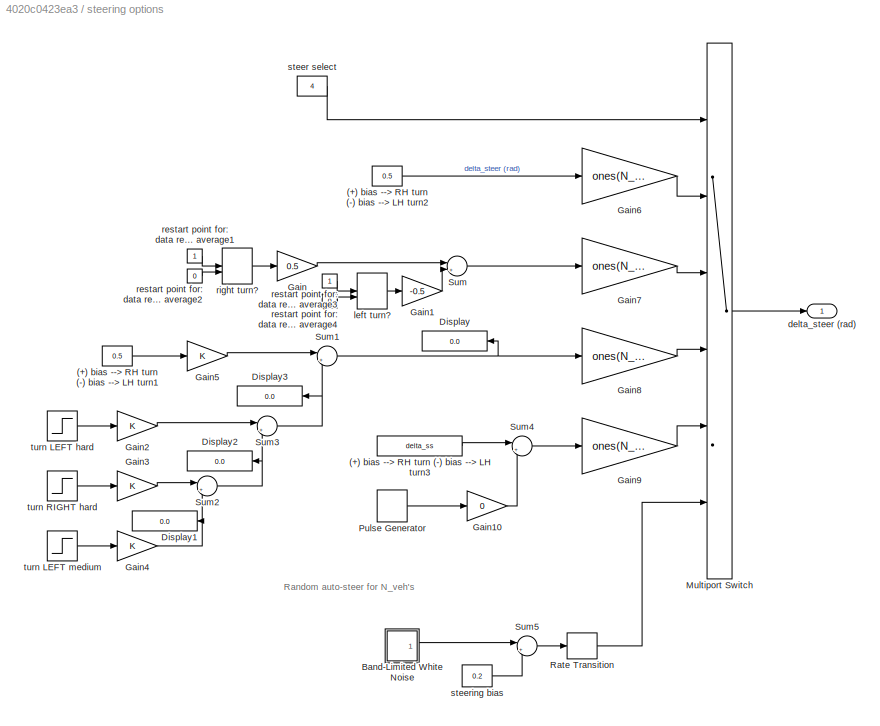
BLOCK [SubSystem] steering options
  Ports = [0, 1]
  RequestExecContextInheritance = off
  Variant = off
BLOCK [Constant] steering options/(+) bias --> RH turn (-) bias --> LH turn1
  Value = 0.5
BLOCK [Constant] steering options/(+) bias --> RH turn (-) bias --> LH turn2
  Value = 0.5
BLOCK [Constant] steering options/(+) bias --> RH turn (-) bias --> LH turn3
  Value = delta_ss
BLOCK [SubSystem] steering options/Band-Limited White Noise
  Ports = [0, 1]
  RequestExecContextInheritance = off
  Variant = off
BLOCK [Gain] steering options/Band-Limited White Noise/Output
  Gain = [sqrt(Cov)]/[sqrt(Ts)]
BLOCK [RandomNumber] steering options/Band-Limited White Noise/White Noise
  DisableCoverage = on
  SampleTime = Ts
  Seed = seed
BLOCK [Outport] steering options/Band-Limited White Noise/y
  IconDisplay = Port number
BLOCK [Display] steering options/Display
  Decimation = 1
  Ports = [1]
BLOCK [Display] steering options/Display1
  Decimation = 1
  Ports = [1]
BLOCK [Display] steering options/Display2
  Decimation = 1
  Ports = [1]
BLOCK [Display] steering options/Display3
  Decimation = 1
  Ports = [1]
BLOCK [Gain] steering options/Gain
  Gain = 0.5
  OutDataTypeStr = Inherit: Inherit via internal rule
  ParamDataTypeStr = Inherit: Inherit via internal rule
  SaturateOnIntegerOverflow = off
BLOCK [Gain] steering options/Gain1
  Gain = -0.5
  OutDataTypeStr = Inherit: Inherit via internal rule
  ParamDataTypeStr = Inherit: Inherit via internal rule
  SaturateOnIntegerOverflow = off
BLOCK [Gain] steering options/Gain10
  Gain = 0
  OutDataTypeStr = Inherit: Inherit via internal rule
  ParamDataTypeStr = Inherit: Inherit via internal rule
  SaturateOnIntegerOverflow = off
BLOCK [Gain] steering options/Gain2
  OutDataTypeStr = Inherit: Inherit via internal rule
  ParamDataTypeStr = Inherit: Inherit via internal rule
  SaturateOnIntegerOverflow = off
BLOCK [Gain] steering options/Gain3
  OutDataTypeStr = Inherit: Inherit via internal rule
  ParamDataTypeStr = Inherit: Inherit via internal rule
  SaturateOnIntegerOverflow = off
BLOCK [Gain] steering options/Gain4
  OutDataTypeStr = Inherit: Inherit via internal rule
  ParamDataTypeStr = Inherit: Inherit via internal rule
  SaturateOnIntegerOverflow = off
BLOCK [Gain] steering options/Gain5
  OutDataTypeStr = Inherit: Inherit via internal rule
  ParamDataTypeStr = Inherit: Inherit via internal rule
  SaturateOnIntegerOverflow = off
BLOCK [Gain] steering options/Gain6
  Gain = ones(N_veh,1)
  OutDataTypeStr = Inherit: Inherit via internal rule
  ParamDataTypeStr = Inherit: Inherit via internal rule
  SaturateOnIntegerOverflow = off
BLOCK [Gain] steering options/Gain7
  Gain = ones(N_veh,1)
  OutDataTypeStr = Inherit: Inherit via internal rule
  ParamDataTypeStr = Inherit: Inherit via internal rule
  SaturateOnIntegerOverflow = off
BLOCK [Gain] steering options/Gain8
  Gain = ones(N_veh,1)
  OutDataTypeStr = Inherit: Inherit via internal rule
  ParamDataTypeStr = Inherit: Inherit via internal rule
  SaturateOnIntegerOverflow = off
BLOCK [Gain] steering options/Gain9
  Gain = ones(N_veh,1)
  OutDataTypeStr = Inherit: Inherit via internal rule
  ParamDataTypeStr = Inherit: Inherit via internal rule
  SaturateOnIntegerOverflow = off
BLOCK [MultiPortSwitch] steering options/Multiport Switch
  InputSameDT = off
  Inputs = 5
  Ports = [6, 1]
  SaturateOnIntegerOverflow = off
BLOCK [DiscretePulseGenerator] steering options/Pulse Generator
  Amplitude = 0.5
  Period = 5
  Ports = [0, 1]
  PulseType = Time based
  PulseWidth = 80
BLOCK [RateTransition] steering options/Rate Transition
BLOCK [Sum] steering options/Sum
  IconShape = round
  InputSameDT = off
  Inputs = |++
  OutDataTypeStr = Inherit: Inherit via internal rule
  Ports = [2, 1]
  SaturateOnIntegerOverflow = off
BLOCK [Sum] steering options/Sum1
  IconShape = round
  InputSameDT = off
  Inputs = |++
  OutDataTypeStr = Inherit: Inherit via internal rule
  Ports = [2, 1]
  SaturateOnIntegerOverflow = off
BLOCK [Sum] steering options/Sum2
  IconShape = round
  InputSameDT = off
  Inputs = |++
  OutDataTypeStr = Inherit: Inherit via internal rule
  Ports = [2, 1]
  SaturateOnIntegerOverflow = off
BLOCK [Sum] steering options/Sum3
  IconShape = round
  InputSameDT = off
  Inputs = |++
  OutDataTypeStr = Inherit: Inherit via internal rule
  Ports = [2, 1]
  SaturateOnIntegerOverflow = off
BLOCK [Sum] steering options/Sum4
  IconShape = round
  InputSameDT = off
  Inputs = |++
  OutDataTypeStr = Inherit: Inherit via internal rule
  Ports = [2, 1]
  SaturateOnIntegerOverflow = off
BLOCK [Sum] steering options/Sum5
  IconShape = round
  InputSameDT = off
  Inputs = |++
  OutDataTypeStr = Inherit: Inherit via internal rule
  Ports = [2, 1]
  SaturateOnIntegerOverflow = off
BLOCK [Outport] steering options/delta_steer (rad)
  IconDisplay = Port number
BLOCK [ManualSwitch] steering options/left turn?
  CurrentSetting = 0
BLOCK [Constant] steering options/restart point for: data received average1
BLOCK [Constant] steering options/restart point for: data received average2
  Value = 0
BLOCK [Constant] steering options/restart point for: data received average3
BLOCK [Constant] steering options/restart point for: data received average4
  Value = 0
BLOCK [ManualSwitch] steering options/right turn?
  CurrentSetting = 0
BLOCK [Constant] steering options/steer select
  Value = 4
BLOCK [Constant] steering options/steering bias
  Value = 0.2
BLOCK [Step] steering options/turn LEFT hard
  After = -1
  SampleTime = 0
  Time = 10
BLOCK [Step] steering options/turn LEFT medium
  After = -0.5
  SampleTime = 0
  Time = 30
BLOCK [Step] steering options/turn RIGHT hard
  After = +1
  SampleTime = 0
  Time = 20
ANNOTATION (root): 2D Multi-Vehicle Visualization Planar top-down animation. SAE Coordinates.
ANNOTATION (root): Marc Compere <email> created : 30 July 2011 modified: 22 Apr 2018
ANNOTATION simple kinematic 2D steered vehicle model: Marc Compere <email> created : 30 July 2011 modified: 11 Jan 2016
ANNOTATION simple kinematic 2D steered vehicle model: Simple kinematic vehicle model of wheelbase length L and width W. Non-holonomic constraints on front and rear wheels allow rolling at low speed with no slipping: v_X = [ v_x \cdot cos(\psi_{heading}) -(L/2)\cdot\omega_z\cdotsin(\psi_{heading}) ] v_Y = [ v_x \cdot sin(\psi_{heading}) +(L/2)\cdot\omega_z\cdotcos(\psi_{heading}) ]
ANNOTATION simple kinematic 2D steered vehicle model: X-position in terrain frame
ANNOTATION simple kinematic 2D steered vehicle model: Y-position in terrain frame
ANNOTATION simple kinematic 2D steered vehicle model: vehicle heading
ANNOTATION simple kinematic 2D steered vehicle model: where: v_x - body-fixed vehicle velocity v_X - terrain frame X velocity v_Y - terrain frame Y velocity \psi-dot - same as \omega_z \psi-dot - (v_x/L) \cdot \delta_{steer}
ANNOTATION steering options: Random auto-steer for N_veh's
LINE Clock:1 -> Simulation Time (s):1
LINE Mux3:1 -> plot 2D planar vehicle:1
LINE const forward speed (m//s):1 -> simple kinematic 2D steered vehicle model:1
LINE plot 2D planar vehicle/Rate Transition:1 -> plot 2D planar vehicle/Animation S-Function:1
LINE plot 2D planar vehicle/[X (m), Y (m), psi (rad), delta (rad)]:1 -> plot 2D planar vehicle/Rate Transition:1
LINE run setup_tracked_a.m/Ground1:1 -> run setup_tracked_a.m/Terminator3:1
LINE run setup_tracked_a.m1/Ground1:1 -> run setup_tracked_a.m1/Terminator3:1
LINE simple kinematic 2D steered vehicle model/1//L:1 -> simple kinematic 2D steered vehicle model/Product2:1
NET simple kinematic 2D steered vehicle model/Gain:1 -> simple kinematic 2D steered vehicle model/Product3:1, simple kinematic 2D steered vehicle model/Product4:1
LINE simple kinematic 2D steered vehicle model/Ground:1 -> simple kinematic 2D steered vehicle model/Trigonometric Function3:1
LINE simple kinematic 2D steered vehicle model/Integrator1:1 -> simple kinematic 2D steered vehicle model/Y_cg (m):1
NET simple kinematic 2D steered vehicle model/Integrator2:1 -> simple kinematic 2D steered vehicle model/Trigonometric Function1:1, simple kinematic 2D steered vehicle model/Trigonometric Function:1, simple kinematic 2D steered vehicle model/psi (rad):1
LINE simple kinematic 2D steered vehicle model/Integrator:1 -> simple kinematic 2D steered vehicle model/X_cg (m):1
LINE simple kinematic 2D steered vehicle model/Product1:1 -> simple kinematic 2D steered vehicle model/Sum:1
NET simple kinematic 2D steered vehicle model/Product2:1 -> simple kinematic 2D steered vehicle model/Display:1, simple kinematic 2D steered vehicle model/Gain:1, simple kinematic 2D steered vehicle model/Integrator2:1
LINE simple kinematic 2D steered vehicle model/Product3:1 -> simple kinematic 2D steered vehicle model/Sum:2
LINE simple kinematic 2D steered vehicle model/Product4:1 -> simple kinematic 2D steered vehicle model/Sum1:2
LINE simple kinematic 2D steered vehicle model/Product:1 -> simple kinematic 2D steered vehicle model/Sum1:1
LINE simple kinematic 2D steered vehicle model/Sum1:1 -> simple kinematic 2D steered vehicle model/Integrator1:1
LINE simple kinematic 2D steered vehicle model/Sum:1 -> simple kinematic 2D steered vehicle model/Integrator:1
NET simple kinematic 2D steered vehicle model/Trigonometric Function1:1 -> simple kinematic 2D steered vehicle model/Product3:2, simple kinematic 2D steered vehicle model/Product:2
LINE simple kinematic 2D steered vehicle model/Trigonometric Function3:1 -> simple kinematic 2D steered vehicle model/Terminator:1
NET simple kinematic 2D steered vehicle model/Trigonometric Function:1 -> simple kinematic 2D steered vehicle model/Product1:2, simple kinematic 2D steered vehicle model/Product4:2
LINE simple kinematic 2D steered vehicle model/delta_steer (rad):1 -> simple kinematic 2D steered vehicle model/Product2:2
NET simple kinematic 2D steered vehicle model/v_x (m//s):1 -> simple kinematic 2D steered vehicle model/1//L:1, simple kinematic 2D steered vehicle model/Product1:1, simple kinematic 2D steered vehicle model/Product:1
NET simple kinematic 2D steered vehicle model:1 -> Mux3:1, X position (m):1
NET simple kinematic 2D steered vehicle model:2 -> Mux3:2, Y position (m):1
NET simple kinematic 2D steered vehicle model:3 -> Mux3:3, heading angle (rad):1
LINE steering options/(+) bias --> RH turn (-) bias --> LH turn1:1 -> steering options/Gain5:1
LINE steering options/(+) bias --> RH turn (-) bias --> LH turn2:1 -> steering options/Gain6:1
LINE steering options/(+) bias --> RH turn (-) bias --> LH turn3:1 -> steering options/Sum4:1
LINE steering options/Band-Limited White Noise:1 -> steering options/Sum5:1
LINE steering options/Gain10:1 -> steering options/Sum4:2
LINE steering options/Gain1:1 -> steering options/Sum:2
LINE steering options/Gain2:1 -> steering options/Sum3:1
LINE steering options/Gain3:1 -> steering options/Sum2:1
NET steering options/Gain4:1 -> steering options/Display1:1, steering options/Sum2:2
LINE steering options/Gain5:1 -> steering options/Sum1:1
LINE steering options/Gain6:1 -> steering options/Multiport Switch:2
LINE steering options/Gain7:1 -> steering options/Multiport Switch:3
LINE steering options/Gain8:1 -> steering options/Multiport Switch:4
LINE steering options/Gain9:1 -> steering options/Multiport Switch:5
LINE steering options/Gain:1 -> steering options/Sum:1
LINE steering options/Multiport Switch:1 -> steering options/delta_steer (rad):1
LINE steering options/Pulse Generator:1 -> steering options/Gain10:1
LINE steering options/Rate Transition:1 -> steering options/Multiport Switch:6
NET steering options/Sum1:1 -> steering options/Display:1, steering options/Gain8:1
NET steering options/Sum2:1 -> steering options/Display2:1, steering options/Sum3:2
NET steering options/Sum3:1 -> steering options/Display3:1, steering options/Sum1:2
LINE steering options/Sum4:1 -> steering options/Gain9:1
LINE steering options/Sum5:1 -> steering options/Rate Transition:1
LINE steering options/Sum:1 -> steering options/Gain7:1
LINE steering options/left turn?:1 -> steering options/Gain1:1
LINE steering options/restart point for: data received average1:1 -> steering options/right turn?:1
LINE steering options/restart point for: data received average2:1 -> steering options/right turn?:2
LINE steering options/restart point for: data received average3:1 -> steering options/left turn?:1
LINE steering options/restart point for: data received average4:1 -> steering options/left turn?:2
LINE steering options/right turn?:1 -> steering options/Gain:1
LINE steering options/steer select:1 -> steering options/Multiport Switch:1
LINE steering options/steering bias:1 -> steering options/Sum5:2
LINE steering options/turn LEFT hard:1 -> steering options/Gain2:1
LINE steering options/turn LEFT medium:1 -> steering options/Gain4:1
LINE steering options/turn RIGHT hard:1 -> steering options/Gain3:1
NET steering options:1 -> Mux3:4, simple kinematic 2D steered vehicle model:2
note: NET lines group one-source signal fan-out (src -> all destinations, sorted); 1:1 wires keep LINE
